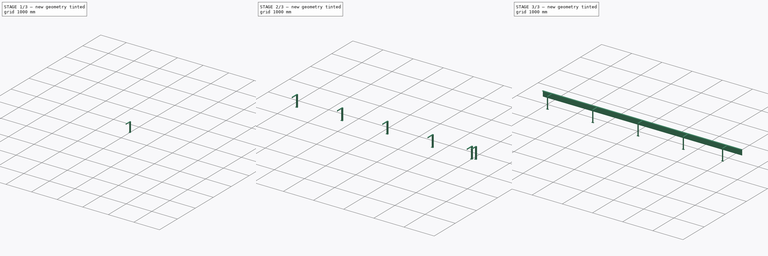
[diagram: build sequence overview — one tinted view per stage of 3, left to right]
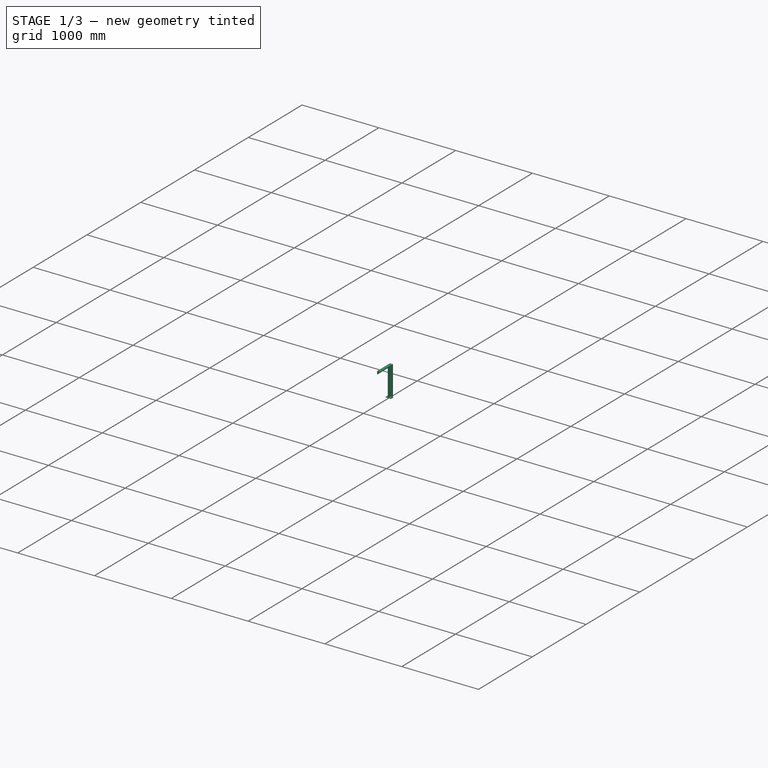
[diagram: stage 1 of 3 — iso view after this stage's code; geometry added in this stage tinted green]
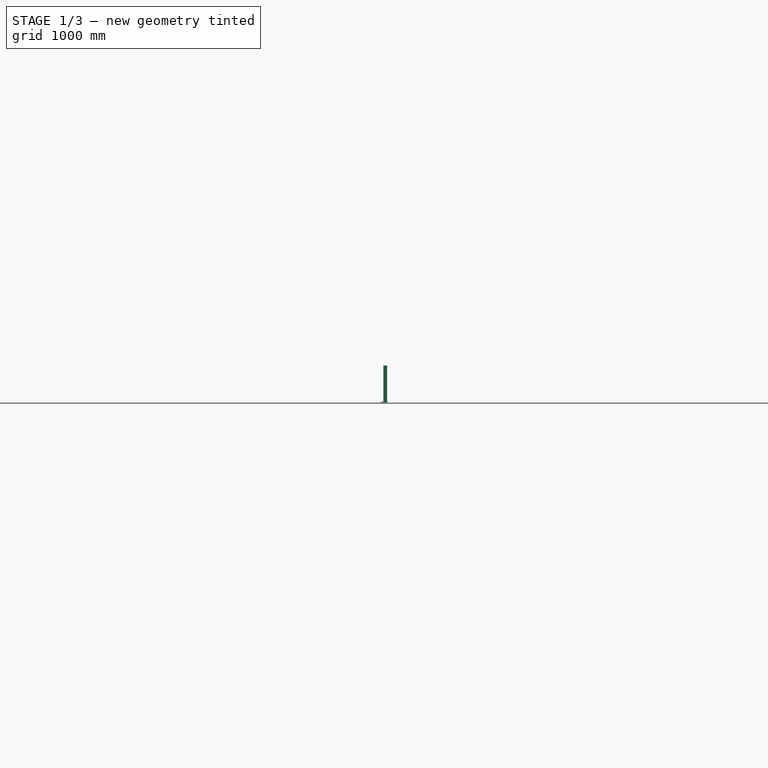
[diagram: stage 1 of 3 — front view after this stage's code; geometry added in this stage tinted green]
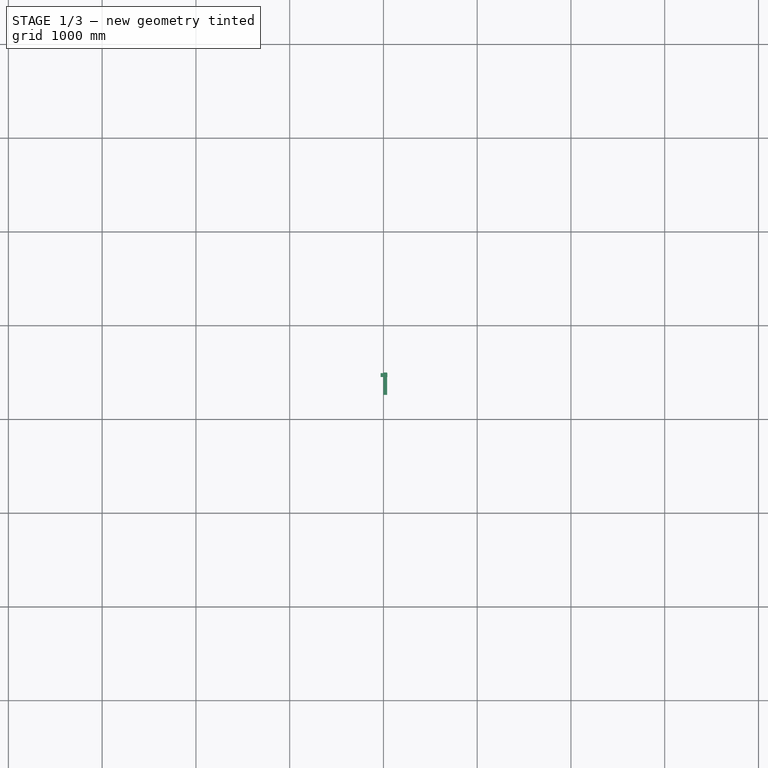
[diagram: stage 1 of 3 — top view after this stage's code; geometry added in this stage tinted green]
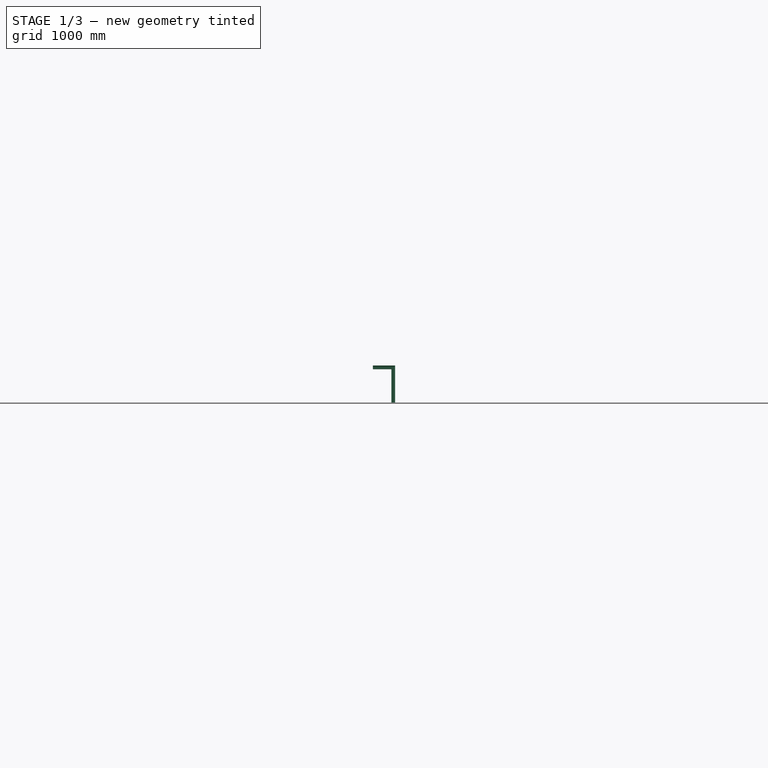
[diagram: stage 1 of 3 — right view after this stage's code; geometry added in this stage tinted green]
FCSTD DOCUMENT  (FreeCAD 1.0R39319 (Git))
Label: Skirt
License: All rights reserved
objects: Part::FeaturePython×4, Sketcher::SketchObject×3, App::Part×3, Part::Extrusion×2, Part::Sweep×1, Spreadsheet::Sheet×1, Part::Mirroring×1
note: 13 computed .brp shape members not serialized (recipe doc carries the construction recipe); baked Part::Feature solids carry a one-line shape summary decoded from their .brp

FEATURE [Sketcher::SketchObject] Sketch017
  ArcFitTolerance = 0
  FullyConstrained = true
  MakeInternals = false
  Placement = pos=(0,0,0) rot=(0.57735,0.57735,0.57735;2.0944rad)
  expr: Constraints[4] = (Spreadsheet.B0 - 200) / 2 + 6
  sketch-geometry (2):
    g0: LineSegment StartX=256 StartY=394 StartZ=0 EndX=493.62 EndY=394 EndZ=0
    g1: LineSegment StartX=493.62 StartY=394 StartZ=0 EndX=493.62 EndY=0 EndZ=0
  constraints (7):
    c: Horizontal(g0)
    c: Vertical(g1)
    c: Coincident(g1,g0)
    c: DistanceX(g0,g0) = 237.62
    c: DistanceX(g-1,g0) = 256
    c: PointOnObject(g1,g-1)
    c: DistanceY(g1,g1) = 394
FEATURE [Part::FeaturePython] AngleSteel  # WARN: FeaturePython — macro-defined, semantics opaque (R4)
  A = 40
  B = 40
  L = 1000
  Placement = pos=(0,300,394) rot=(1,0,0;3.14159rad)
  Solid = false
  g0 = 7.85
  mass = 0
  size = 5
  standard = SS_Equal
  t = 5
FEATURE [Part::Sweep] Sweep002
  Frenet = false
  Sections = -> [AngleSteel]
  Solid = true
  Spine = -> Sketch017 [Edge1,Edge2]
  Transition = 1
FEATURE [Sketcher::SketchObject] Sketch018
  ArcFitTolerance = 0
  AttachmentSupport = -> [Sweep002]
  FullyConstrained = true
  MakeInternals = false
  MapMode = 5
  Placement = pos=(0,0,6.235e-13) rot=(1,0,0;3.14159rad)
  expr: Constraints[10] = <<shtSkt>>.B0 / 2 + 97.5 + 6
  sketch-geometry (4):
    g0: LineSegment StartX=-30 StartY=-493.5 StartZ=0 EndX=42 EndY=-493.5 EndZ=0
    g1: LineSegment StartX=42 StartY=-493.5 StartZ=0 EndX=42 EndY=-453.5 EndZ=0
    g2: LineSegment StartX=42 StartY=-453.5 StartZ=0 EndX=-30 EndY=-453.5 EndZ=0
    g3: LineSegment StartX=-30 StartY=-453.5 StartZ=0 EndX=-30 EndY=-493.5 EndZ=0
  constraints (12):
    c: Coincident(g0,g1)
    c: Coincident(g1,g2)
    c: Coincident(g2,g3)
    c: Coincident(g3,g0)
    c: Horizontal(g0)
    c: Horizontal(g2)
    c: Vertical(g1)
    c: Vertical(g3)
    c: DistanceY(g3,g3) = 40
    c: DistanceX(g-2,g0) = -30
    c: DistanceY(g2,g-1) = 453.5
    c: DistanceX(g2,g2) = 72
FEATURE [Part::Extrusion] Extrude011
  Base = -> Sketch018
  Dir = (0,0,-1)
  DirMode = 2
  FaceMakerClass = Part::FaceMakerBullseye
  FaceMakerMode = 3
  LengthFwd = 6
  LengthRev = 0
  Reversed = true
  Solid = true
  Symmetric = false
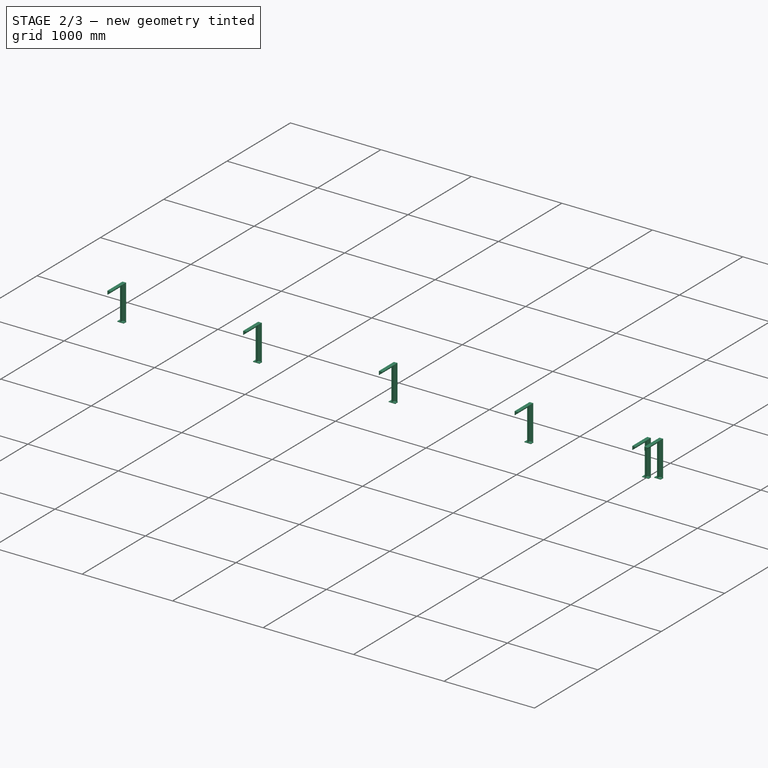
[diagram: stage 2 of 3 — iso view after this stage's code; geometry added in this stage tinted green]
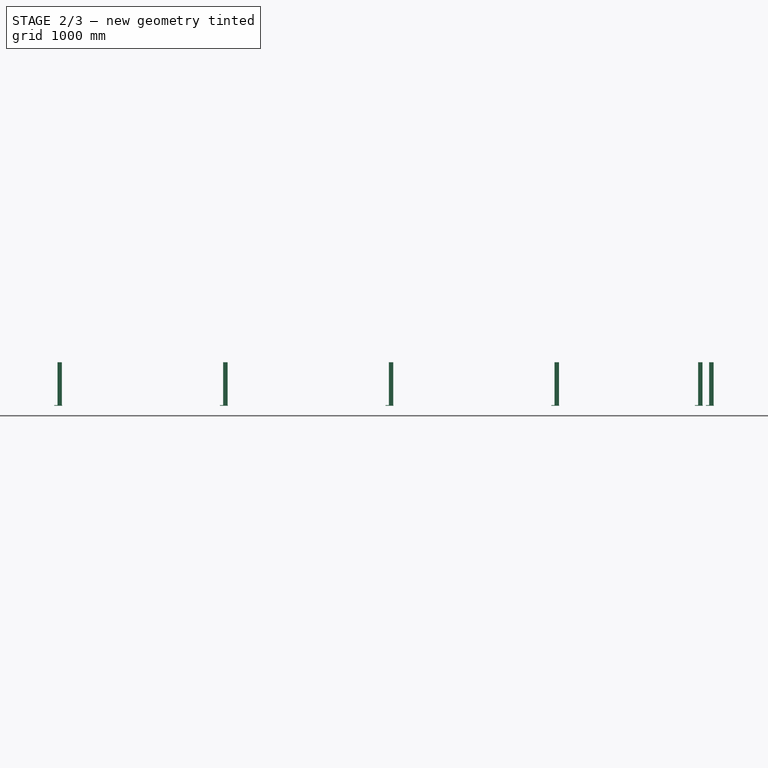
[diagram: stage 2 of 3 — front view after this stage's code; geometry added in this stage tinted green]
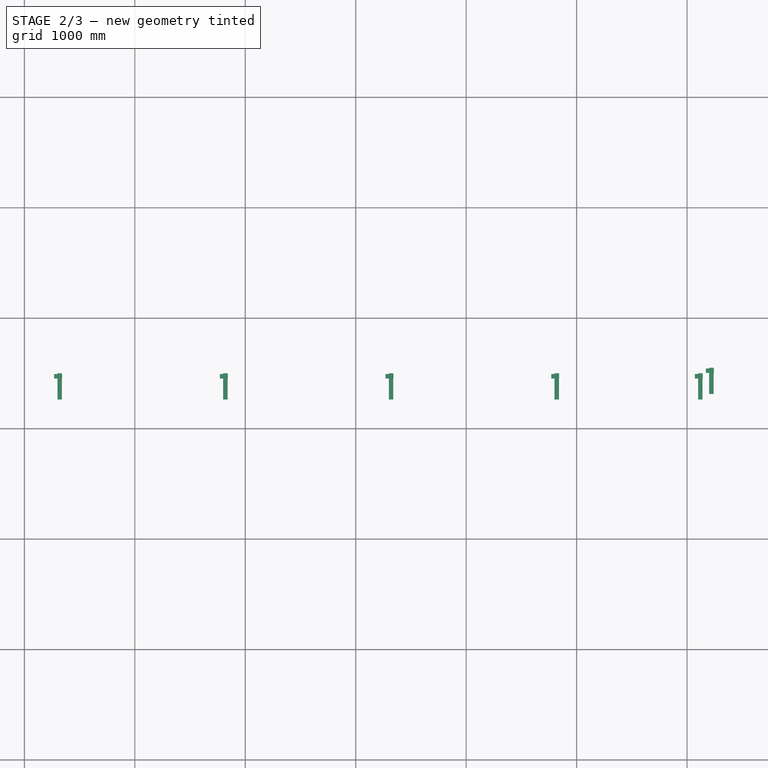
[diagram: stage 2 of 3 — top view after this stage's code; geometry added in this stage tinted green]
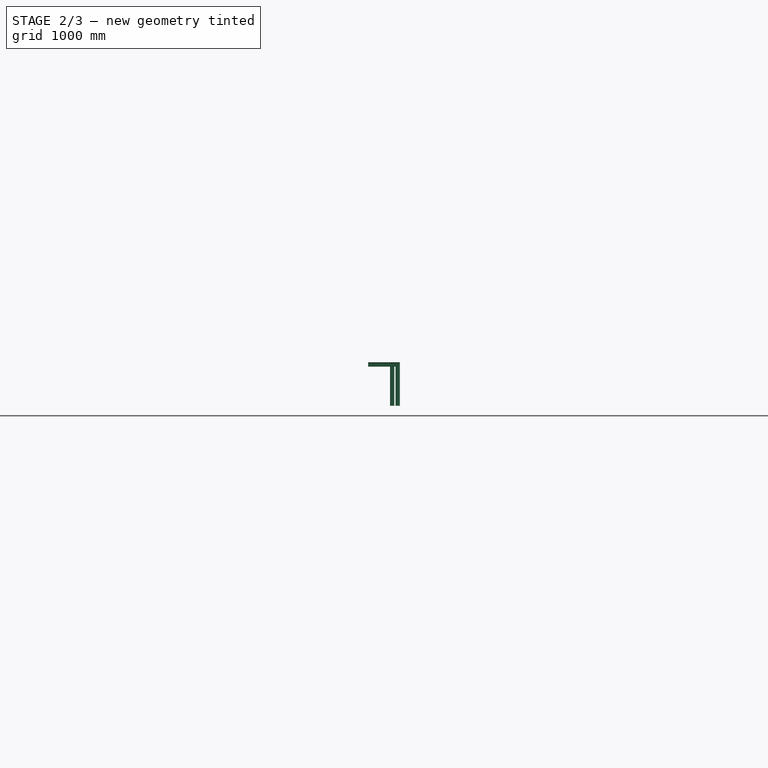
[diagram: stage 2 of 3 — right view after this stage's code; geometry added in this stage tinted green]
FEATURE [App::Part] Part009  label="post001"
  Group = -> [Sketch017,Sweep002,AngleSteel,Extrude011,Sketch018]
  Origin = -> Origin013
FEATURE [Part::FeaturePython] Array003  # Draft array (typed FeaturePython)
  AlwaysSyncPlacement = false
  Angle = 360
  ArrayType = 0
  Axis = (0,0,1)
  Base = -> Part009
  Center = (0,0,0)
  Count = 4
  ExpandArray = false
  Fuse = false
  IntervalAxis = (0,0,0)
  IntervalX = (1500,0,0)
  IntervalY = (0,100,0)
  IntervalZ = (0,0,100)
  NumberCircles = 3
  NumberPolar = 5
  NumberX = 4
  NumberY = 1
  NumberZ = 1
  Placement = pos=(300,0,0) rot=(0,0,1;0rad)
  PlacementList = 4 placements: arithmetic series from (0,0,0) step (1500,0,0) to (4500,0,0)
  RadialDistance = 50
  ScaleList = (4) [(1,1,1),(1,1,1),(1,1,1),(1,1,1)]
  Symmetry = 1
  TangentialDistance = 25
  expr: .IntervalX.x = 1500 mm
  expr: .Placement.Base.x = (<<shtSkt>>.C0 - (Count - 1) * 1500) / 2
  expr: NumberX = (Spreadsheet.C0 - 1000) / 1500
FEATURE [Spreadsheet::Sheet] Spreadsheet  label="shtSkt"
  cells = C1='tailPulleyHIght Ht; D1='Inclination k(degree); E1='Array_n; F1='BeltWidth B0; G1='h1; H1='h2; I1='post_x; J1='pst_c; A2='CenterDistance C0; B2(C0)=6600; C2(Ht)=1000; D2(k)=0; E2(n0)==C0 / 2500; F2=500; G2(h1)=50; H2(h2)=73; I2(post_x)=2350; J2(post_c)=1; A3='BeltWidth B0; B3(B0)=700; C3=400; D3=450; E3=500; F3=600; G3=700; H3=750; I3=800; J3=900; K3=1000; A4='Belt b1; B4(b1)=210; C4=145; D4=165; E4=180; F4=210; G4=250; H4=265; I4=280; J4=315; K4=345; A5='Belt b2; B5(b2)=195; C5==(C3 - C4) / 2; D5==(D3 - D4) / 2; E5==(E3 - E4) / 2; F5==(F3 - F4) / 2; G5==(G3 - G4) / 2; H5==(H3 - H4) / 2; I5==(I3 - I4) / 2; J5==(J3 - J4) / 2; K5==(K3 - K4) / 2; A6='BeltThickness t0; B6(t0)=10; C6=10; D6=10; E6=10; F6=10; G6=10; H6=10; I6=10; J6=10; K6=10; A7='HeadPullyDia D0; B7(D0)=460; C7=300; D7=300; E7=360; F7=360; G7=360; H7=460; I7=460; J7=520; K7=520; A8='TailPullyDia d1; B8(d1)=380; C8=260; D8=260; E8=300; F8=300; G8=300; H8=390; I8=390; J8=440; K8=440; A9='SnapPullyDia d2; B9(d2)=200; C9=200; D9=200; E9=200; F9=200; G9=200; H9=200; I9=200; J9=200; K9=200; A10='SnapPully Ls; B10(Ls)=500; C10=400; D10=400; E10=400; F10=500; G10=500; H10=500; I10=500; J10=500; K10=500; A11='SnapPully h0; B11(h0)=180; C11=180; D11=180; E11=160; F11=180; G11=180; H11=180; I11=180; J11=180; K11=180; A12='hontaihaba W; B12(W0)=1010; C12=710; D12=760; E12=810; F12=910; G12=910; H12=910; I12=910; J12=910; K12=910; A13='hontai _h; B13=103.5; C13=103.5; D13=103.5; E13=103.5; F13=103.5; G13=103.5; H13=103.5; I13=103.5; J13=103.5; K13=103.5; A14='hontai_z; B14=16; C14=16; D14=16; E14=16; F14=16; G14=16; H14=16; I14=16; J14=16; K14=16; A15='takeup_x; B15=-403.47; C15=-403.47; D15=-403.47; E15=-403.47; F15=-403.47; G15=-403.47; H15=-403.47; I15=-403.47; J15=-403.47; K15=-403.47; A16='takeup_y; B16=-362.8; C16=-362.8; D16=-362.8; E16=-362.8; F16=-410; G16=-410; H16=-410; I16=-410; J16=-410; K16=-410; A17='takeup_z; B17=-87; C17=-87; D17=-87; E17=-87; F17=-57; G17=-57; H17=-57; I17=-57; J17=-57; K17=-57; A18='carrierPitch  cp; B18=1000; A19='returnPitch rp; B19=1500; A20='outletL; B20(outletL)=50; A21='outletK; B21(outletK)=0; A22='insertX; B22(insertX)=300; A23='insertK; B23(insertK)=0
FEATURE [Part::FeaturePython] Clone001  label="post002"  # Draft clone (typed FeaturePython)
  AttacherType = Attacher::AttachEngine3D
  Fuse = false
  Objects = -> [Part009]
  Placement = pos=(6200,50,0) rot=(0,0,1;0rad)
  Scale = (1,1,1)
  expr: .Placement.Base.x = Spreadsheet.C0 - 400
  expr: .Placement.Base.y = (<<shtSkt>>.B0 - 600) / 2
FEATURE [Part::FeaturePython] Clone  label="post003"  # Draft clone (typed FeaturePython)
  AttacherType = Attacher::AttachEngine3D
  Fuse = false
  Objects = -> [Part009]
  Placement = pos=(6100,0,0) rot=(0,0,1;0rad)
  Scale = (1,1,1)
  expr: .Placement.Base.x = <<shtSkt>>.C0 - 500
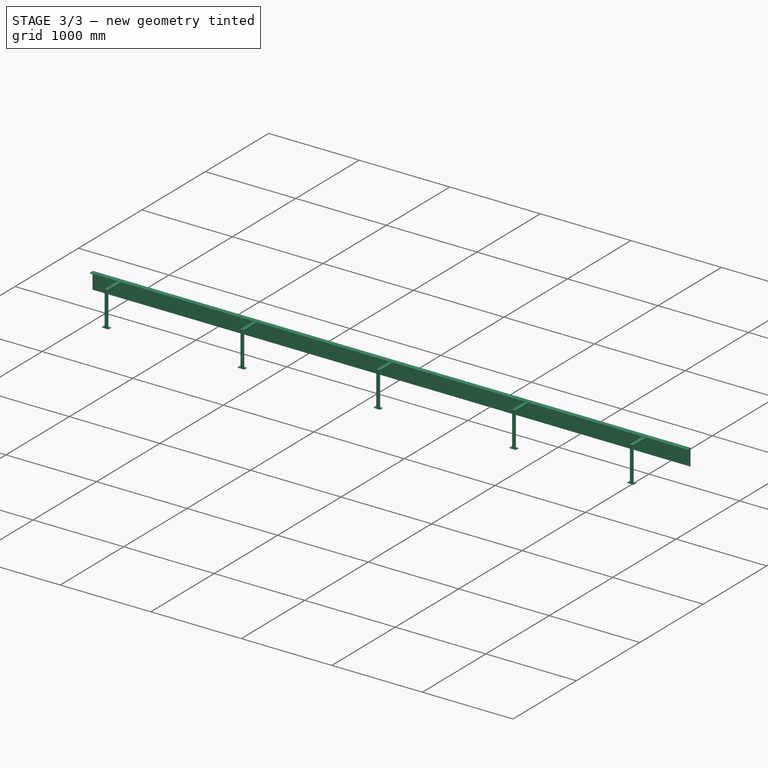
[diagram: stage 3 of 3 — iso view after this stage's code; geometry added in this stage tinted green]
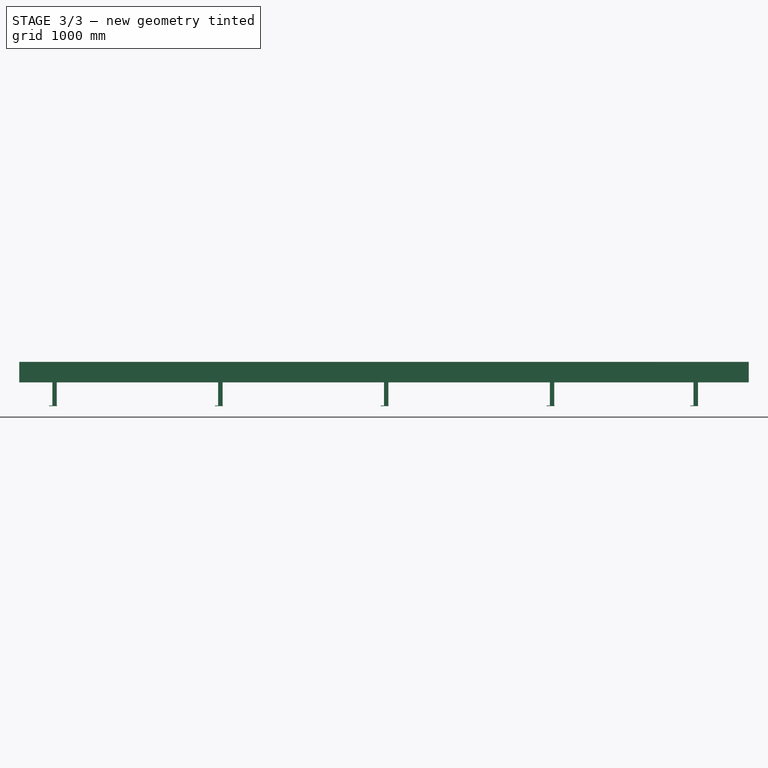
[diagram: stage 3 of 3 — front view after this stage's code; geometry added in this stage tinted green]
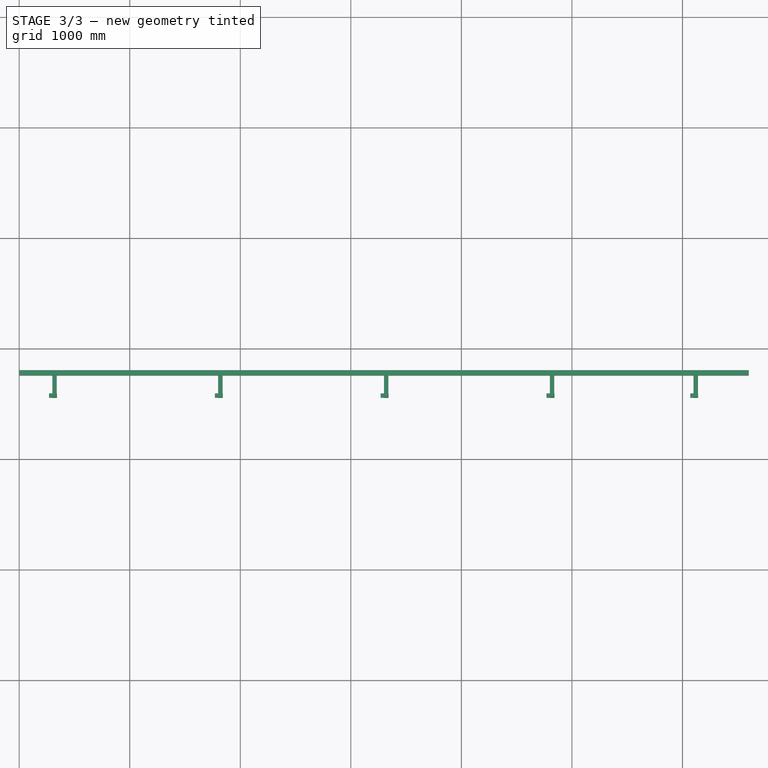
[diagram: stage 3 of 3 — top view after this stage's code; geometry added in this stage tinted green]
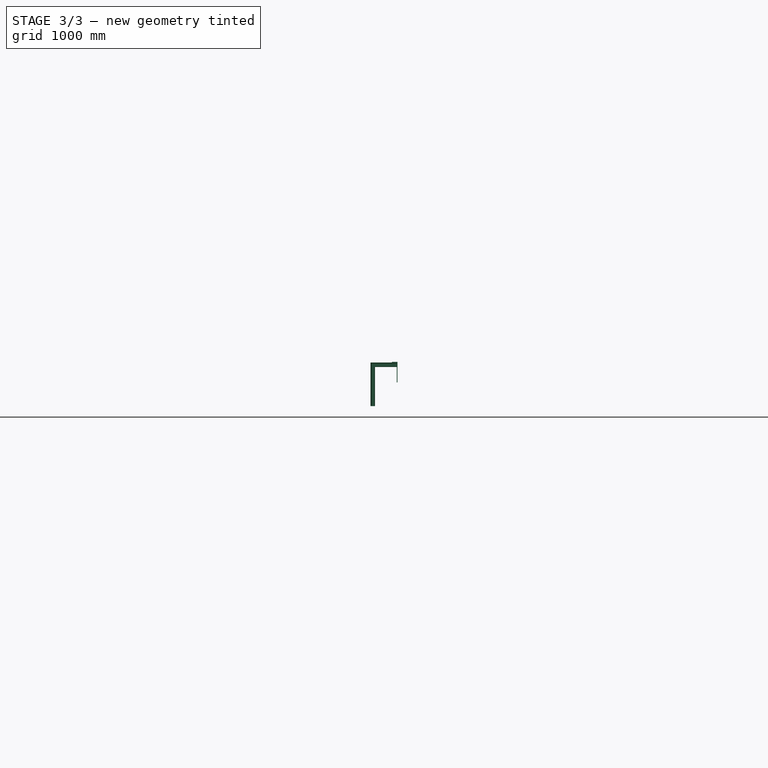
[diagram: stage 3 of 3 — right view after this stage's code; geometry added in this stage tinted green]
FEATURE [Sketcher::SketchObject] Sketch016
  ArcFitTolerance = 0
  FullyConstrained = true
  MakeInternals = false
  Placement = pos=(0,0,0) rot=(0.57735,0.57735,0.57735;2.0944rad)
  expr: Constraints[5] = (Spreadsheet.B0 - 200) / 2
  sketch-geometry (6):
    g0: LineSegment StartX=250 StartY=215 StartZ=0 EndX=256 EndY=215 EndZ=0
    g1: LineSegment StartX=256 StartY=215 StartZ=0 EndX=256 EndY=394 EndZ=0
    g2: LineSegment StartX=250 StartY=400 StartZ=0 EndX=250 EndY=215 EndZ=0
    g3: LineSegment StartX=300 StartY=400 StartZ=0 EndX=300 EndY=394 EndZ=0
    g4: LineSegment StartX=300 StartY=394 StartZ=0 EndX=256 EndY=394 EndZ=0
    g5: LineSegment StartX=250 StartY=400 StartZ=0 EndX=300 EndY=400 EndZ=0
  constraints (18):
    c: Coincident(g0,g1)
    c: Coincident(g2,g0)
    c: Horizontal(g0)
    c: Vertical(g1)
    c: Vertical(g2)
    c: DistanceX(g-2,g2) = 250
    c: Vertical(g3)
    c: Coincident(g3,g4)
    c: Horizontal(g4)
    c: Coincident(g1,g4)
    c: Coincident(g5,g2)
    c: Coincident(g5,g3)
    c: Horizontal(g5)
    c: DistanceY(g3,g3) = 6
    c: DistanceX(g5,g5) = 50
    c: DistanceY(g2,g2) = 185
    c: DistanceX(g0,g0) = 6
    c: DistanceY(g-1,g2) = 400
FEATURE [Part::Extrusion] Extrude010
  Base = -> Sketch016
  Dir = (1,0,0)
  DirMode = 2
  FaceMakerClass = Part::FaceMakerBullseye
  FaceMakerMode = 3
  LengthFwd = 6600
  LengthRev = 0
  Solid = true
  Symmetric = false
  expr: LengthFwd = Spreadsheet.C0
FEATURE [App::Part] Part008  label="skirt"
  Group = -> [Sketch016,Extrude010,Part009,Clone001,Array003,Clone]
  Origin = -> Origin012
  Placement = pos=(0,-50,0) rot=(0,0,1;0rad)
FEATURE [Part::Mirroring] Mirror003  label="skirt001"
  Base = (-900,0,0)
  Normal = (0,-1,0)
  Source = -> Part008
FEATURE [App::Part] Part011  label="Skirt"
  Group = -> [Part008,Mirror003,Spreadsheet]
  Origin = -> Origin015
  Placement = pos=(0,0,-13) rot=(0,0,1;0rad)
  mass = 120.96
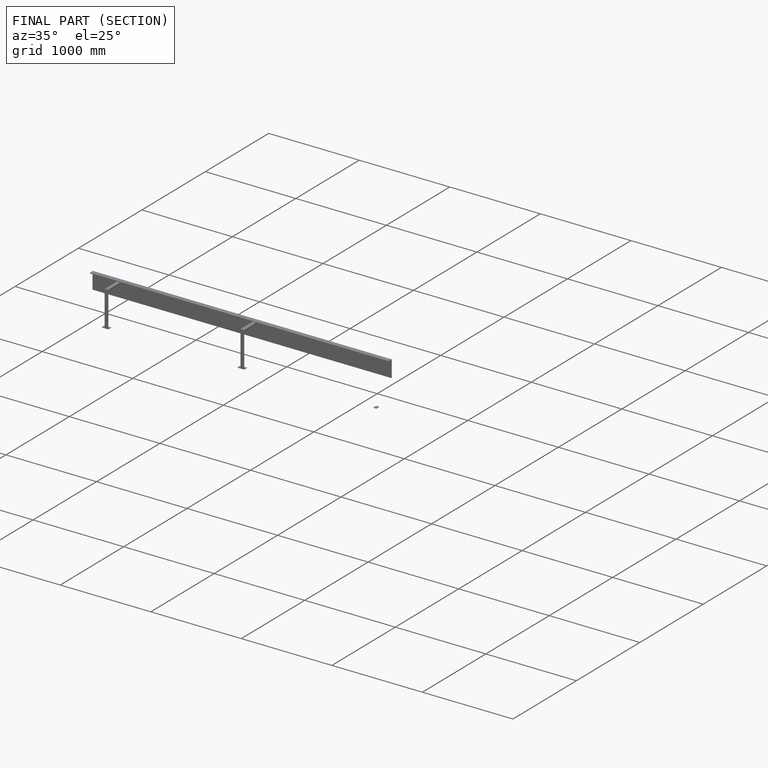
[diagram: finished part — half-section view (interior)]
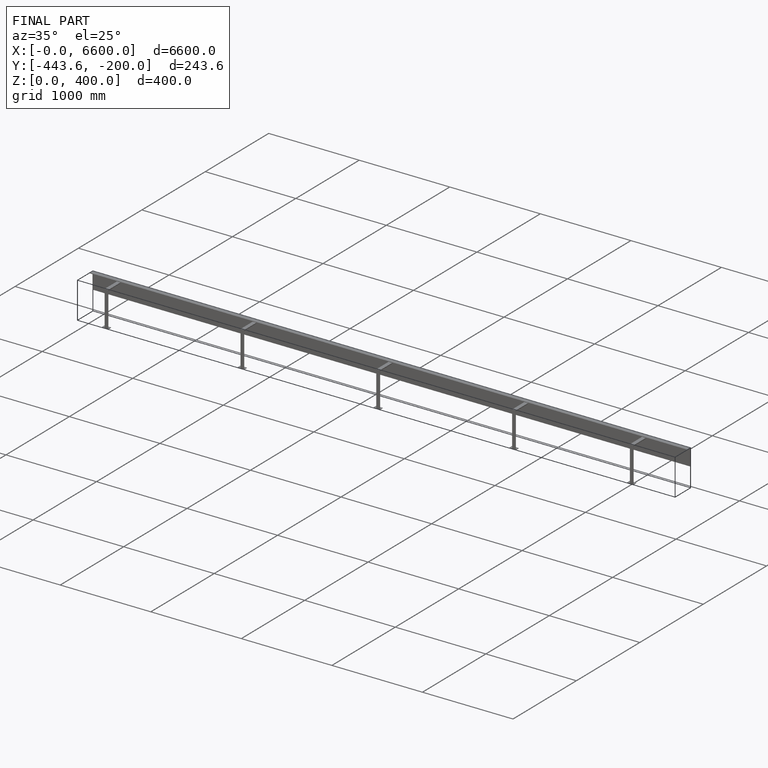
[diagram: finished part — iso view with bounding-box wireframe]
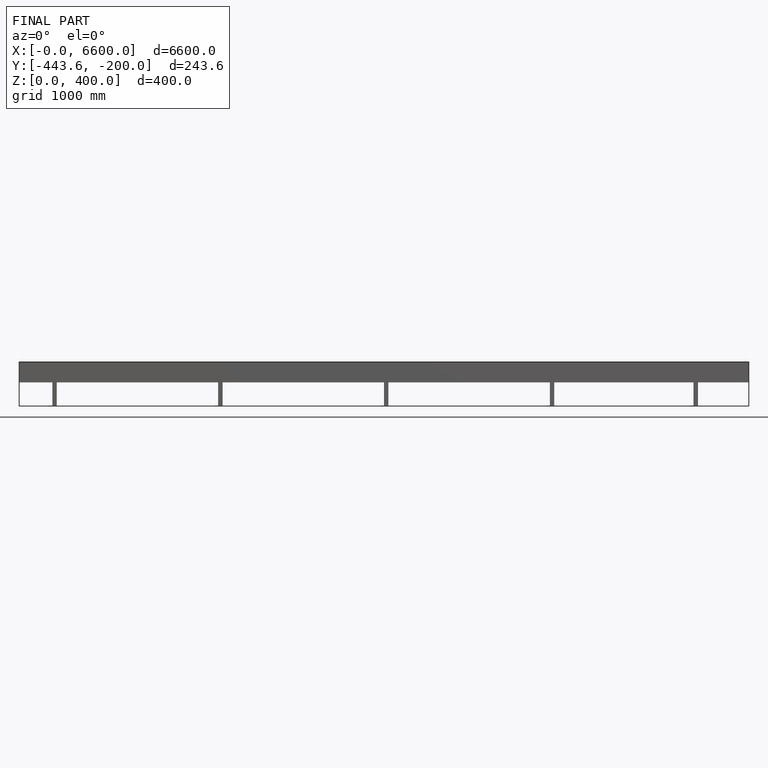
[diagram: finished part — front view with bounding-box wireframe]
